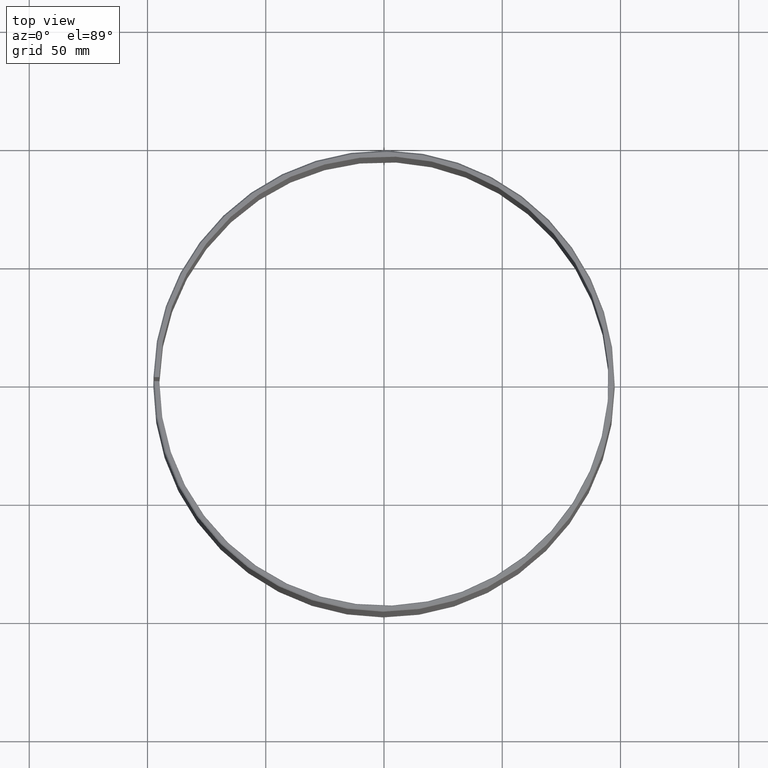
[diagram: clean part render]
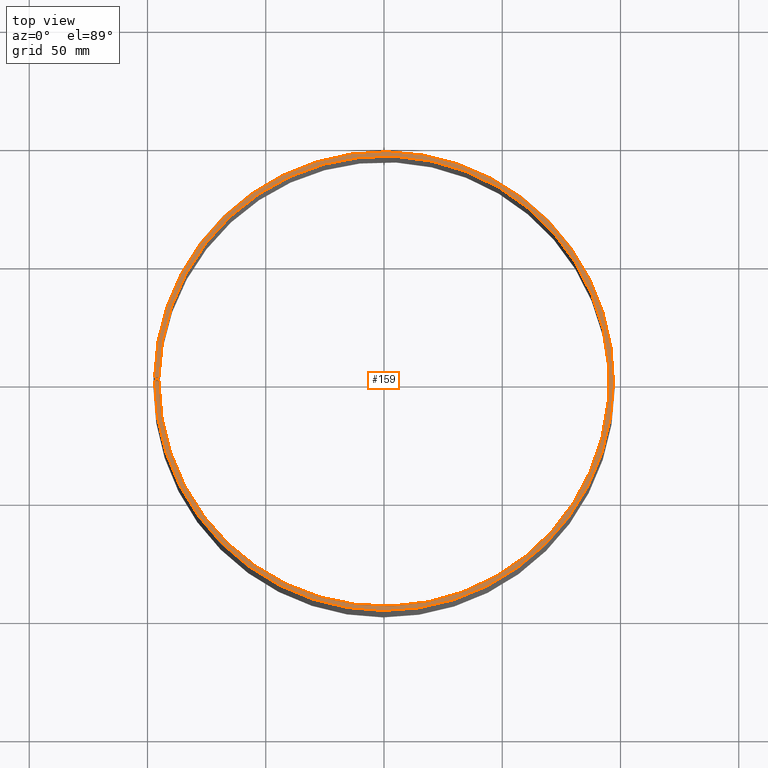
[diagram: same view with one face highlighted and labeled with its STEP entity id]
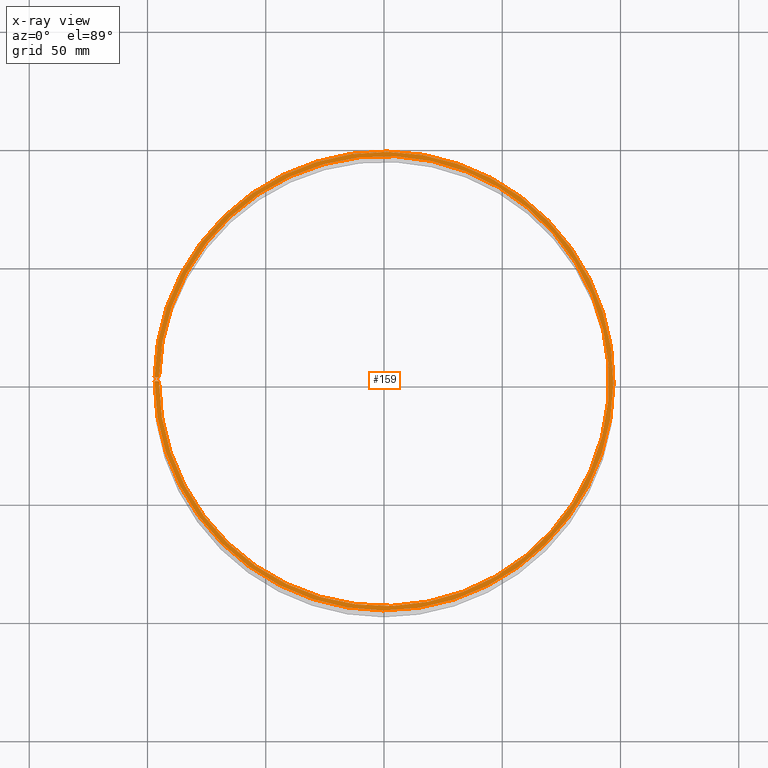
[diagram: x-ray of the same camera — body ghosted, the highlighted face saturated]
A machine part, top view. The second image highlights one B-rep face of the part: STEP entity #159.
The next image is the same camera in x-ray: the body ghosted, the highlighted face saturated — about 0% of this face is hidden behind the body in this view.
In plain terms, the highlighted planar face has unit normal (0, -0, 1).
Its self-contained STEP definition (entity closure, byte-faithful):
#159=ADVANCED_FACE('',(#177),#178,.T.);
#177=FACE_OUTER_BOUND('',#198,.T.);
#178=PLANE('',#199);
#198=EDGE_LOOP('',(#248,#249,#250,#251));
#199=AXIS2_PLACEMENT_3D('',#252,#253,#254);
#248=ORIENTED_EDGE('',*,*,#303,.T.);
#249=ORIENTED_EDGE('',*,*,#304,.T.);
#250=ORIENTED_EDGE('',*,*,#305,.F.);
#251=ORIENTED_EDGE('',*,*,#300,.F.);
#252=CARTESIAN_POINT('',(0.0016928834244165,0.0969852264301699,0.14));
#253=DIRECTION('',(-6.12323399573677E-017,0.0,1.0));
#254=DIRECTION('',(1.0,0.0,6.12323399573677E-017));
#300=EDGE_CURVE('',#336,#337,#338,.T.);
#303=EDGE_CURVE('',#336,#341,#342,.T.);
#304=EDGE_CURVE('',#341,#343,#344,.T.);
#305=EDGE_CURVE('',#337,#343,#345,.T.);
#336=VERTEX_POINT('',#386);
#337=VERTEX_POINT('',#387);
#338=CIRCLE('',#388,0.097);
#341=VERTEX_POINT('',#393);
#342=LINE('',#394,#395);
#343=VERTEX_POINT('',#396);
#344=CIRCLE('',#397,0.0952);
#345=LINE('',#398,#399);
#386=CARTESIAN_POINT('',(0.0016928834244165,0.0969852264301699,0.14));
#387=CARTESIAN_POINT('',(-1.21430643318376E-017,0.097,0.14));
#388=AXIS2_PLACEMENT_3D('',#432,#433,#434);
#393=CARTESIAN_POINT('',(0.00166146909282938,0.0951855005788884,0.14));
#394=CARTESIAN_POINT('',(0.0016928834244165,0.0969852264301699,0.14));
#395=VECTOR('',#437,1.0);
#396=CARTESIAN_POINT('',(-1.21430643318376E-017,0.0952,0.14));
#397=AXIS2_PLACEMENT_3D('',#438,#439,#440);
#398=CARTESIAN_POINT('',(-1.21430643318376E-017,0.097,0.14));
#399=VECTOR('',#441,1.0);
#432=CARTESIAN_POINT('',(-1.21430643318376E-017,-2.60208521396521E-018,0.14));
#433=DIRECTION('',(6.12323399573677E-017,0.0,-1.0));
#434=DIRECTION('',(-1.0,0.0,-6.12323399573677E-017));
#437=DIRECTION('',(-0.0174524064372836,-0.999847695156391,-1.0686516840419E-018));
#438=CARTESIAN_POINT('',(-1.21430643318376E-017,-2.60208521396521E-018,0.14));
#439=DIRECTION('',(6.12323399573677E-017,0.0,-1.0));
#440=DIRECTION('',(-1.0,0.0,-6.12323399573677E-017));
#441=DIRECTION('',(0.0,-1.0,0.0));